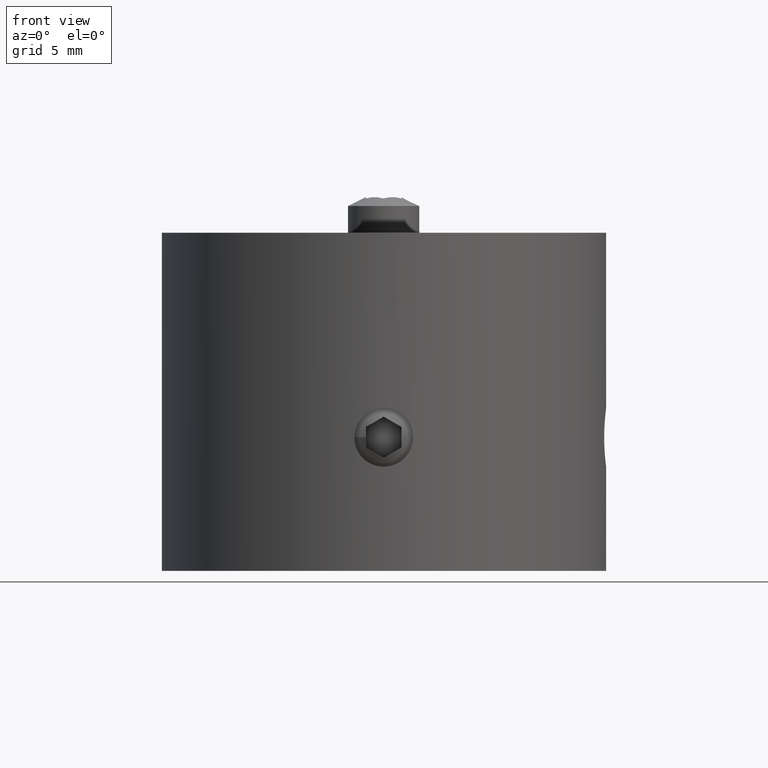
[diagram: clean part render]
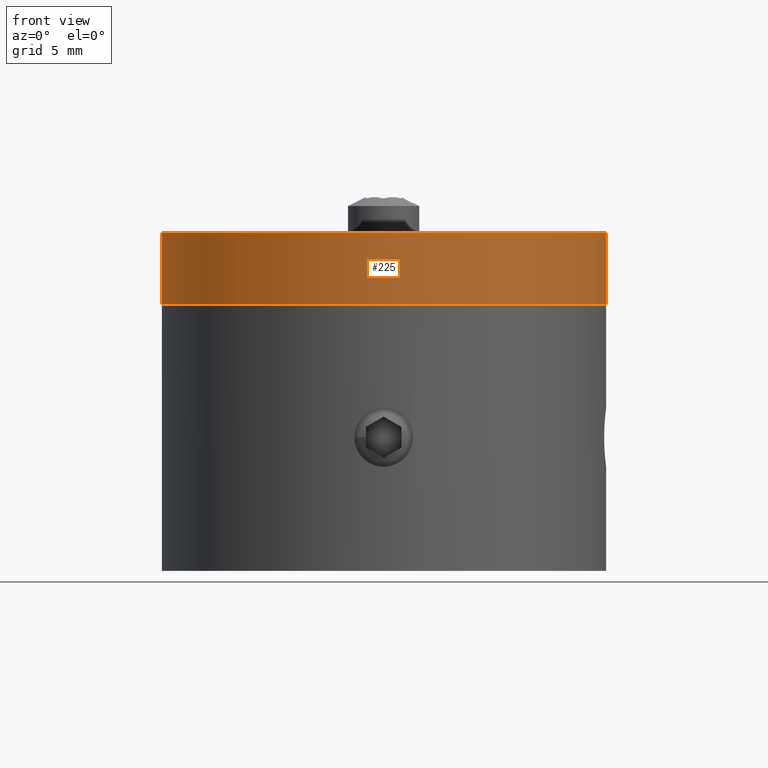
[diagram: same view with one face highlighted and labeled with its STEP entity id]
A machine part, front view. The second image highlights one B-rep face of the part: STEP entity #225.
In plain terms, the highlighted cylindrical surface (bore or boss wall) has radius 12.5 mm, axis along (0, -0, 1).
Its self-contained STEP definition (entity closure, byte-faithful):
#225 = ADVANCED_FACE( '', ( #269, #270 ), #271, .T. );
#269 = FACE_OUTER_BOUND( '', #329, .T. );
#270 = FACE_OUTER_BOUND( '', #330, .T. );
#271 = CYLINDRICAL_SURFACE( '', #331, 12.5000000000000 );
#329 = EDGE_LOOP( '', ( #401 ) );
#330 = EDGE_LOOP( '', ( #402 ) );
#331 = AXIS2_PLACEMENT_3D( '', #403, #404, #405 );
#401 = ORIENTED_EDGE( '', *, *, #505, .F. );
#402 = ORIENTED_EDGE( '', *, *, #506, .T. );
#403 = CARTESIAN_POINT( '', ( 0.000000000000000, 0.000000000000000, 4.00000000000000 ) );
#404 = DIRECTION( '', ( 0.000000000000000, -0.000000000000000, 1.00000000000000 ) );
#405 = DIRECTION( '', ( -1.00000000000000, 0.000000000000000, 0.000000000000000 ) );
#505 = EDGE_CURVE( '', #547, #547, #548, .T. );
#506 = EDGE_CURVE( '', #549, #549, #550, .T. );
#547 = VERTEX_POINT( '', #823 );
#548 = CIRCLE( '', #824, 12.5000000000000 );
#549 = VERTEX_POINT( '', #825 );
#550 = CIRCLE( '', #826, 12.5000000000000 );
#823 = CARTESIAN_POINT( '', ( 12.5000000000000, 0.000000000000000, 4.00000000000000 ) );
#824 = AXIS2_PLACEMENT_3D( '', #921, #922, #923 );
#825 = CARTESIAN_POINT( '', ( 12.5000000000000, 0.000000000000000, 0.000000000000000 ) );
#826 = AXIS2_PLACEMENT_3D( '', #924, #925, #926 );
#921 = CARTESIAN_POINT( '', ( 0.000000000000000, 0.000000000000000, 4.00000000000000 ) );
#922 = DIRECTION( '', ( 0.000000000000000, 0.000000000000000, 1.00000000000000 ) );
#923 = DIRECTION( '', ( 1.00000000000000, 0.000000000000000, 0.000000000000000 ) );
#924 = CARTESIAN_POINT( '', ( 0.000000000000000, 0.000000000000000, 0.000000000000000 ) );
#925 = DIRECTION( '', ( 0.000000000000000, 0.000000000000000, 1.00000000000000 ) );
#926 = DIRECTION( '', ( 1.00000000000000, 0.000000000000000, 0.000000000000000 ) );